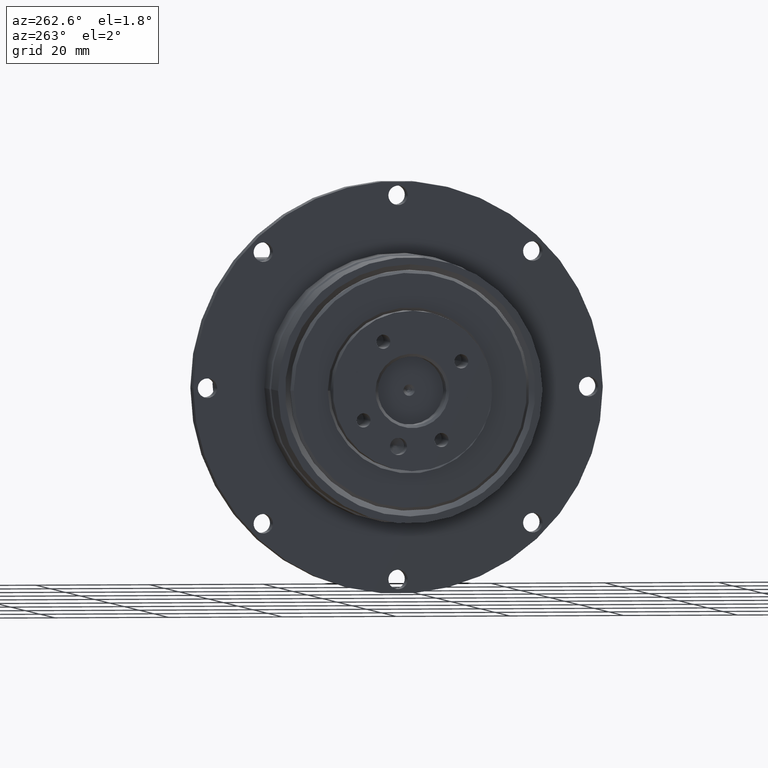
[diagram: clean part render]
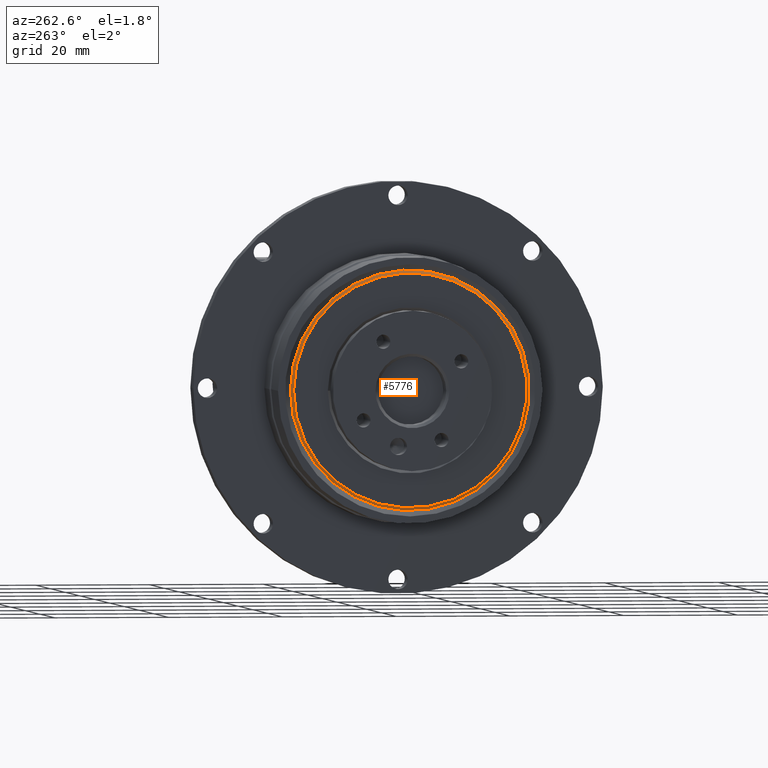
[diagram: same view with one face highlighted and labeled with its STEP entity id]
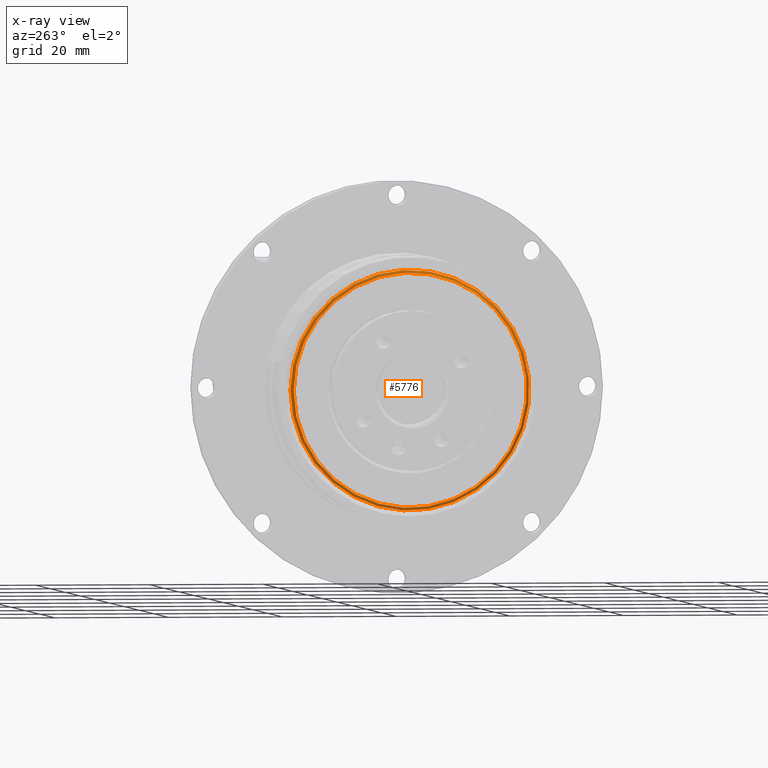
[diagram: x-ray of the same camera — body ghosted, the highlighted face saturated]
A machine part, auxiliary view. The second image highlights one B-rep face of the part: STEP entity #5776.
The next image is the same camera in x-ray: the body ghosted, the highlighted face saturated — about 0% of this face is hidden behind the body in this view.
In plain terms, the highlighted conical surface has half-angle 45 deg.
Its self-contained STEP definition (entity closure, byte-faithful):
#680=CONICAL_SURFACE('',#6400,20.75,44.9999999999999);
#1106=FACE_BOUND('',#1971,.T.);
#1420=FACE_OUTER_BOUND('',#1970,.T.);
#1970=EDGE_LOOP('',(#4471));
#1971=EDGE_LOOP('',(#4472));
#2446=CIRCLE('',#6401,20.5);
#2447=CIRCLE('',#6402,21.);
#2852=VERTEX_POINT('',#9436);
#2853=VERTEX_POINT('',#9438);
#3452=EDGE_CURVE('',#2852,#2852,#2446,.T.);
#3453=EDGE_CURVE('',#2853,#2853,#2447,.T.);
#4471=ORIENTED_EDGE('',*,*,#3452,.T.);
#4472=ORIENTED_EDGE('',*,*,#3453,.T.);
#5776=ADVANCED_FACE('',(#1420,#1106),#680,.T.);
#6400=AXIS2_PLACEMENT_3D('',#9435,#7639,#7640);
#6401=AXIS2_PLACEMENT_3D('',#9437,#7641,#7642);
#6402=AXIS2_PLACEMENT_3D('',#9439,#7643,#7644);
#7639=DIRECTION('center_axis',(1.,4.57397997154441E-30,3.28165415675901E-15));
#7640=DIRECTION('ref_axis',(7.13791262317973E-30,-1.,-7.8129276552636E-16));
#7641=DIRECTION('center_axis',(1.,4.57397997154441E-30,3.28165415675901E-15));
#7642=DIRECTION('ref_axis',(7.13791262317973E-30,-1.,-7.8129276552636E-16));
#7643=DIRECTION('center_axis',(-1.,-4.57397997154441E-30,-3.28165415675901E-15));
#7644=DIRECTION('ref_axis',(7.13791262317973E-30,-1.,-7.8129276552636E-16));
#9435=CARTESIAN_POINT('Origin',(-28.3451631034668,-49.1307567443876,52.8867726493691));
#9436=CARTESIAN_POINT('',(-28.5951631034668,-28.6307567443876,52.8867726493691));
#9437=CARTESIAN_POINT('Origin',(-28.5951631034668,-49.1307567443876,52.8867726493691));
#9438=CARTESIAN_POINT('',(-28.0951631034668,-28.1307567443876,52.8867726493691));
#9439=CARTESIAN_POINT('Origin',(-28.0951631034668,-49.1307567443876,52.8867726493691));